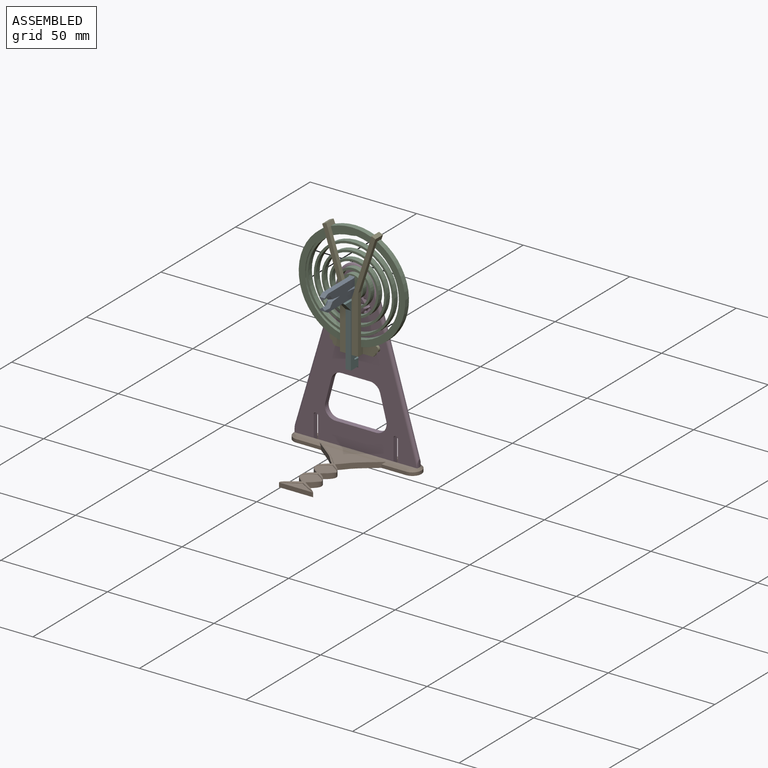
[diagram: assembled view]
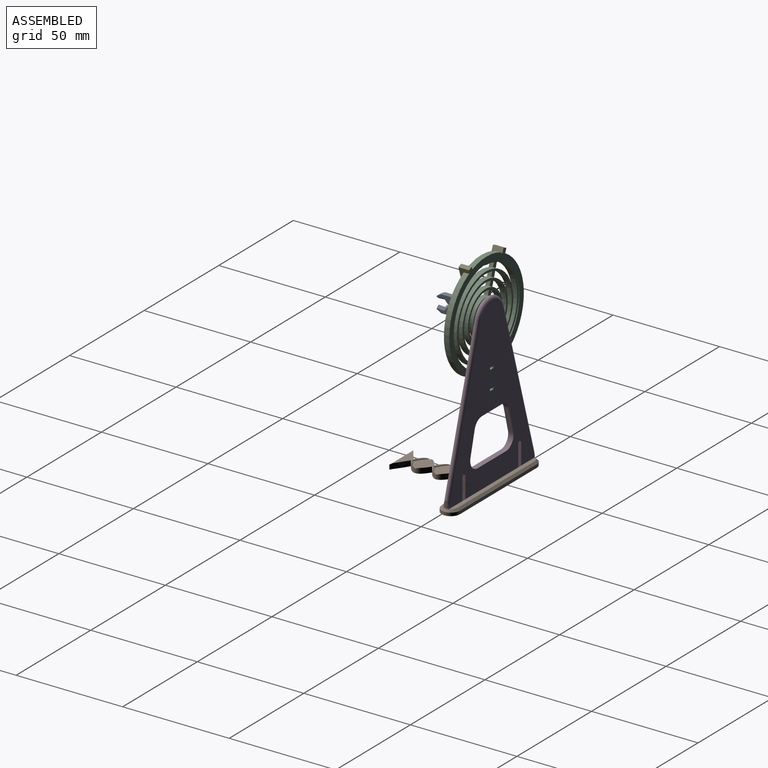
[diagram: assembled view, second angle]
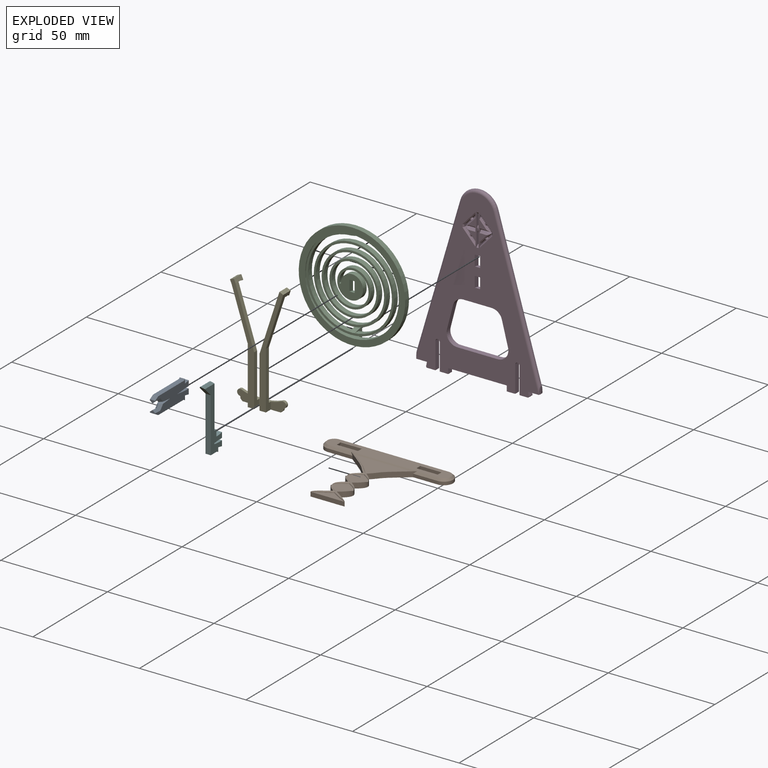
[diagram: exploded view]
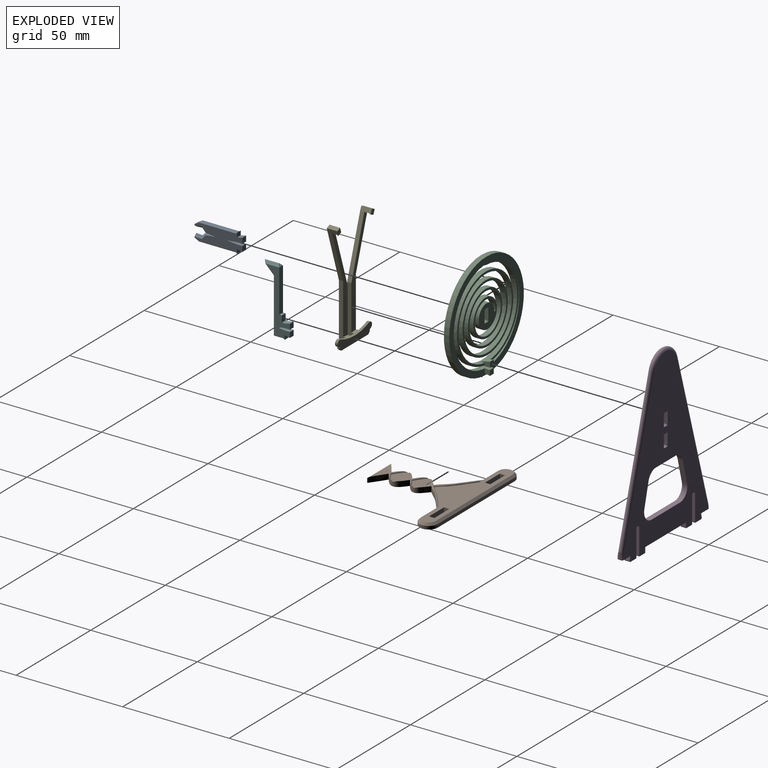
[diagram: exploded view, second angle]
ASSEMBLY  parts=6 mates=5
PART A: 34 faces, bbox 22.5x9x2.5 mm
  f0: plane 22.5x9mm, normal (0,0,1), area 141.1mm2, adj f2,f4,f5,f7,f8,f9,f10,f11
  f1: plane 1.11x0.96mm, normal (-0.75,-0.66,0), area 0.1mm2, adj f2,f3,f26,f28
  f2: plane 2.33x2.16mm, normal (-0.58,-0.5,0.64), area 3.4mm2, adj f0,f1,f25,f26,f28,f32
  f3: plane 2.31x2.16mm, normal (-0.58,-0.5,-0.64), area 3.4mm2, adj f1,f17,f26,f28,f32
  f4: plane 2.5x2.5mm, normal (0,-1,0), area 6.3mm2, adj f0,f14,f17,f30
  f5: plane 2.5x0.5mm, normal (-0.71,0.71,0), area 1.8mm2, adj f0,f16,f17,f24
  f6: plane 1.11x0.96mm, normal (-0.75,0.66,0), area 0.1mm2, adj f19,f20,f21,f29
  f7: plane 2.5x1.44mm, normal (-1,0,0), area 2.3mm2, adj f0,f17,f18,f20,f22
  f8: plane 17.39x2.5mm, normal (0,-1,0), area 43.5mm2, adj f0,f9,f17,f22
  f9: plane 2.5x0.5mm, normal (-0.71,-0.71,0), area 1.8mm2, adj f0,f8,f10,f17
  f10: plane 2.5x2mm, normal (1,0,0), area 5mm2, adj f0,f9,f11,f17
  f11: plane 2.5x2.5mm, normal (-0.2,-0.98,0), area 6.4mm2, adj f0,f10,f12,f17
  f12: plane 2.5x2.5mm, normal (1,0,0), area 6.2mm2, adj f0,f11,f13,f17
  f13: plane 2.5x2.5mm, normal (0,1,0), area 6.3mm2, adj f0,f12,f17,f31
  f14: plane 2.5x2.5mm, normal (1,0,0), area 6.2mm2, adj f0,f4,f15,f17
  f15: plane 2.5x2.5mm, normal (-0.2,0.98,0), area 6.4mm2, adj f0,f14,f16,f17
  f16: plane 2.5x2mm, normal (1,0,0), area 5mm2, adj f0,f5,f15,f17
  f17: plane 22.5x9mm, normal (0,0,-1), area 141.1mm2, adj f3,f4,f5,f7,f8,f9,f10,f11
  f18: plane 3.43x1.25mm, normal (0.05,0.77,0.64), area 5.2mm2, adj f0,f7,f19,f20
  f19: plane 2.33x2.16mm, normal (-0.58,0.5,0.64), area 3.4mm2, adj f0,f6,f18,f20,f29,f33
  f20: plane 3.43x1.3mm, normal (0.05,0.77,-0.64), area 5.2mm2, adj f6,f7,f17,f18,f19,f21
  f21: plane 2.31x2.16mm, normal (-0.58,0.5,-0.64), area 3.4mm2, adj f6,f17,f20,f29,f33
  f22: plane 2.5x2.11mm, normal (-0.49,-0.87,0), area 6mm2, adj f0,f7,f8,f17
  f23: plane 2.5x1.44mm, normal (-1,0,0), area 2.3mm2, adj f0,f17,f25,f26,f27
  f24: plane 17.39x2.5mm, normal (0,1,0), area 43.5mm2, adj f0,f5,f17,f27
  f25: plane 3.43x1.25mm, normal (0.05,-0.77,0.64), area 5.2mm2, adj f0,f2,f23,f26
  f26: plane 3.43x1.3mm, normal (0.05,-0.77,-0.64), area 5.2mm2, adj f1,f2,f3,f17,f23,f25
  f27: plane 2.5x2.11mm, normal (-0.49,0.87,0), area 6mm2, adj f0,f17,f23,f24
  f28: plane 1.99x1.04mm, normal (0,-1,0), area 1.1mm2, adj f1,f2,f3,f32
  f29: plane 1.99x1.04mm, normal (0,1,0), area 1.1mm2, adj f6,f19,f21,f33
  f30: plane 5x2.5mm, normal (0.1,-1,0), area 12.6mm2, adj f0,f4,f17,f31
  f31: plane 5x2.5mm, normal (0.1,1,0), area 12.6mm2, adj f0,f13,f17,f30
  f32: plane 5x2.5mm, normal (-0.1,-1,0), area 12.5mm2, adj f0,f2,f3,f17,f28,f33
  f33: plane 5x2.5mm, normal (-0.1,1,0), area 12.5mm2, adj f0,f17,f19,f21,f29,f32
PART B: 60 faces, bbox 60.1x2.6x46 mm
  f0: cylinder r=2.3mm len=2.5mm, axis (0,0,1), area 0.8mm2, adj f5,f11,f12,f59
  f1: cylinder r=2.3mm len=2.5mm, axis (0,0,-1), area 0.8mm2, adj f5,f13,f15,f58
  f2: plane 4.9x3.78mm, normal (0,-1,0), area 1.9mm2, adj f30,f31,f46,f47
  f3: plane 5.73x5.66mm, normal (0,-1,0), area 2.8mm2, adj f8,f33,f42,f43
  f4: plane 16x2mm, normal (0,0,-1), area 32mm2, adj f9,f25,f33,f39
  f5: plane 58x21.89mm, normal (0,-1,0), area 335mm2, adj f0,f1,f10,f11,f12,f13,f14,f15
  f6: plane 5.68x5.66mm, normal (0,-1,0), area 2.8mm2, adj f16,f25,f40,f41
  f7: plane 4.9x3.78mm, normal (0,-1,0), area 1.9mm2, adj f18,f19,f44,f45
  f8: extruded ~4.99x4.17mm, area 16.3mm2, adj f3,f9,f32,f33,f36,f42
  f9: plane 60x45.53mm, normal (0,1,0), area 797.5mm2, adj f4,f8,f10,f11,f12,f13,f14,f15
  f10: plane 2.5x2.5mm, normal (-1,0,0), area 6.3mm2, adj f5,f9,f11,f12
  f11: plane 10.45x2.5mm, normal (0,0,-1), area 25.5mm2, adj f0,f5,f9,f10,f59
  f12: plane 10.45x2.5mm, normal (0,0,1), area 25.5mm2, adj f0,f5,f9,f10,f59
  f13: plane 10.45x2.5mm, normal (0,0,-1), area 25.5mm2, adj f1,f5,f9,f14,f58
  f14: plane 2.5x2.5mm, normal (1,0,0), area 6.3mm2, adj f5,f9,f13,f15
  f15: plane 10.45x2.5mm, normal (0,0,1), area 25.5mm2, adj f1,f5,f9,f14,f58
  f16: extruded ~4.99x4.17mm, area 16.3mm2, adj f6,f9,f17,f25,f36,f40
  f17: extruded ~2x0.19mm, area 0.4mm2, adj f9,f16,f18,f36
  f18: extruded ~4.78x4.2mm, area 15.7mm2, adj f7,f9,f17,f19,f45
  f19: extruded ~4.93x4.21mm, area 16.2mm2, adj f7,f9,f18,f20,f44
  f20: extruded ~2x0.1mm, area 0.2mm2, adj f9,f19,f21,f38
  f21: extruded ~4.99x4.24mm, area 16mm2, adj f5,f9,f20,f22,f51
  f22: extruded ~14.71x12.98mm, area 46mm2, adj f5,f9,f21,f23,f56
  f23: plane 11.5x1.5mm, normal (0,0,-1), area 17.2mm2, adj f9,f22,f24,f56
  f24: cylinder r=4.28mm len=8.56mm, axis (0,-1,0), area 20.2mm2, adj f9,f23,f35,f55
  f25: extruded ~7.17x5.01mm, area 21.2mm2, adj f4,f6,f9,f16,f41
  f26: plane 11.5x1.5mm, normal (0,0,-1), area 17.2mm2, adj f9,f27,f34,f52
  f27: extruded ~14.71x12.98mm, area 46mm2, adj f5,f9,f26,f28,f52
  f28: extruded ~4.99x4.24mm, area 16mm2, adj f5,f9,f27,f29,f50
  f29: extruded ~2x0.1mm, area 0.2mm2, adj f9,f28,f30,f38
  f30: extruded ~4.93x4.21mm, area 16.2mm2, adj f2,f9,f29,f31,f46
  f31: extruded ~4.78x4.2mm, area 15.7mm2, adj f2,f9,f30,f32,f47
  f32: extruded ~2x0.19mm, area 0.4mm2, adj f8,f9,f31,f36
  f33: extruded ~7.17x5.01mm, area 21.2mm2, adj f3,f4,f8,f9,f43
  f34: cylinder r=4.28mm len=8.56mm, axis (0,-1,0), area 20.2mm2, adj f9,f26,f35,f53
  f35: plane 51.44x1.5mm, normal (0,0,1), area 77.2mm2, adj f9,f24,f34,f54
  f36: plane 10.49x9.18mm, normal (0,-1,0), area 55mm2, adj f8,f16,f17,f32,f40,f42,f45,f47
  f37: plane 27.99x12mm, normal (0,-1,0), area 151.8mm2, adj f48,f49,f57
  f38: plane 10.56x9.43mm, normal (0,-1,0), area 54mm2, adj f20,f29,f44,f46,f50,f51
  f39: plane 16.05x4.53mm, normal (0,-1,0), area 33.4mm2, adj f4,f41,f43
  f40: bspline ~6.35x5.63mm, area 4.6mm2, adj f6,f16,f36,f41,f42
  f41: bspline ~9.87x5.8mm, area 6.5mm2, adj f6,f25,f39,f40,f43
  f42: bspline ~6.35x5.63mm, area 4.6mm2, adj f3,f8,f36,f40,f43
  f43: bspline ~9.87x5.8mm, area 6.5mm2, adj f3,f33,f39,f41,f42
  f44: bspline ~6.6x5.76mm, area 4.7mm2, adj f7,f19,f38,f45,f46
  f45: bspline ~7.04x6.09mm, area 4.6mm2, adj f7,f18,f36,f44,f47
  f46: bspline ~6.35x5.57mm, area 4.7mm2, adj f2,f30,f38,f44,f47
  f47: bspline ~7.04x6.09mm, area 4.6mm2, adj f2,f31,f36,f45,f46
  f48: bspline ~16.84x14.25mm, area 15.1mm2, adj f5,f37,f49,f50,f57
  f49: bspline ~16.84x14.25mm, area 15.1mm2, adj f5,f37,f48,f51,f57
  f50: bspline ~6.37x5.71mm, area 4.5mm2, adj f5,f28,f38,f48,f51
  f51: bspline ~6.37x5.71mm, area 4.5mm2, adj f5,f21,f38,f49,f50
  f52: plane 11.5x1mm, normal (0,-0.71,-0.71), area 15.4mm2, adj f5,f26,f27,f53
  f53: cone r=3.28mm half-angle=45deg, axis (0,1,0), area 16.8mm2, adj f5,f34,f52,f54
  f54: plane 51.44x1mm, normal (0,-0.71,0.71), area 72.7mm2, adj f5,f35,f53,f55
  f55: cone r=3.28mm half-angle=45deg, axis (0,1,0), area 16.8mm2, adj f5,f24,f54,f56
  f56: plane 11.5x1mm, normal (0,-0.71,-0.71), area 15.4mm2, adj f5,f22,f23,f55
  f57: plane 30.82x0.5mm, normal (0,-0.71,-0.71), area 20.4mm2, adj f5,f37,f48,f49
  f58: plane 2.5x2.16mm, normal (-0.98,0.21,0), area 5.5mm2, adj f1,f9,f13,f15
  f59: plane 2.5x2.16mm, normal (0.98,0.21,0), area 5.5mm2, adj f0,f9,f11,f12
PART C: 28 faces, bbox 5.6x50.6x50.6 mm
  f0: plane 50x50mm, normal (-1,0,0), area 904.6mm2, adj f1,f3,f10,f11,f12,f18,f19,f20
  f1: extruded ~40.36x37.52mm, area 975.3mm2, adj f0,f2,f9,f11,f16,f17,f25,f26
  f2: plane 39.44x37.69mm, normal (1,0,0), area 395.9mm2, adj f1,f3,f16,f19,f20,f21,f22,f23
  f3: extruded ~40.68x38.21mm, area 911mm2, adj f0,f2,f9,f12,f16,f17,f24,f27
  f4: plane 2.5x2.5mm, normal (1,0,0), area 6.2mm2, adj f5,f6,f7,f8
  f5: plane 2.5x2.5mm, normal (0,0,1), area 5.6mm2, adj f4,f7,f8,f9
  f6: plane 2.5x2.5mm, normal (0,0,-1), area 5.6mm2, adj f4,f7,f8,f9
  f7: plane 2.5x2.5mm, normal (-0.2,0.98,0), area 6.4mm2, adj f4,f5,f6,f9
  f8: plane 2.5x2.5mm, normal (0,-1,0), area 6.3mm2, adj f4,f5,f6,f9
  f9: plane 50x50mm, normal (1,0,0), area 498.8mm2, adj f1,f3,f5,f6,f7,f8,f10,f11
  f10: cylinder r=25mm len=50mm, axis (1,0,0), area 392.7mm2, adj f0,f9
  f11: cylinder r=22mm len=44mm, axis (-1,0,0), area 293.3mm2, adj f0,f1,f9,f18
  f12: plane 2.5x0.01mm, normal (0,-0.03,-1), area 0mm2, adj f0,f3,f9,f18
  f13: plane 2.5x2.5mm, normal (1,0,0), area 6.2mm2, adj f14,f15,f16,f17
  f14: plane 3.56x2.81mm, normal (0,1,0), area 7.8mm2, adj f13,f16,f17,f25
  f15: plane 3.83x3.08mm, normal (-0.2,-0.98,0), area 7.2mm2, adj f13,f16,f17,f24
  f16: plane 4.5x2.5mm, normal (0,0,-1), area 6.8mm2, adj f1,f2,f3,f13,f14,f15,f24,f25
  f17: plane 4.5x2.5mm, normal (0,0,1), area 6.8mm2, adj f1,f3,f9,f13,f14,f15,f24,f25
  f18: plane 2.5x2.02mm, normal (0,0.98,-0.19), area 5.2mm2, adj f0,f9,f11,f12
  f19: plane 6x2.5mm, normal (0,0,-1), area 13.7mm2, adj f0,f2,f22,f23
  f20: cylinder r=5.15mm len=10.31mm, axis (-1,0,0), area 41.1mm2, adj f0,f2,f26,f27
  f21: plane 6x2.5mm, normal (0,0,1), area 13.7mm2, adj f0,f2,f22,f23
  f22: plane 2.5x2.5mm, normal (0.2,0.98,0), area 6.4mm2, adj f0,f2,f19,f21
  f23: plane 2.5x2.5mm, normal (0.2,-0.98,0), area 6.4mm2, adj f0,f2,f19,f21
  f24: bspline ~2.85x2mm, area 4mm2, adj f3,f15,f16,f17
  f25: bspline ~2.55x1.62mm, area 3.8mm2, adj f1,f14,f16,f17
  f26: cylinder r=100mm len=2.5mm, axis (1,0,0), area 1.4mm2, adj f0,f1,f2,f20
  f27: cylinder r=0.38mm len=2.5mm, axis (1,0,0), area 2.9mm2, adj f0,f2,f3,f20
PART D: 99 faces, bbox 59.9x2.6x82.3 mm
  f0: plane 15x2.4mm, normal (1,0,0), area 28.5mm2, adj f1,f3,f28,f30,f75,f94,f95,f98
  f1: plane 1.4x1mm, normal (0,0,1), area 1.4mm2, adj f0,f2,f94,f98
  f2: plane 15x2.4mm, normal (-1,0,0), area 28.5mm2, adj f1,f3,f29,f30,f74,f94,f95,f98
  f3: plane 1.4x1mm, normal (0,0,-1), area 1.4mm2, adj f0,f2,f95,f98
  f4: plane 6x5.5mm, normal (0.74,0,0.68), area 13.7mm2, adj f5,f13,f79,f93,f97
  f5: plane 2.48x2.4mm, normal (-1,0,0), area 2.8mm2, adj f4,f6,f30,f83,f93,f97
  f6: plane 5x4.58mm, normal (-0.74,0,-0.68), area 11.1mm2, adj f5,f7,f79,f83,f97
  f7: plane 4.58x1.9mm, normal (0,0,1), area 8mm2, adj f6,f8,f24,f76,f82,f97
  f8: plane 1.07x0.89mm, normal (-1,0,0), area 0.6mm2, adj f7,f9,f27,f76,f97
  f9: plane 4.58x1.9mm, normal (0,0,-1), area 8.2mm2, adj f8,f10,f24,f27,f80,f97
  f10: plane 5x4.58mm, normal (-0.74,0,0.68), area 11.1mm2, adj f9,f11,f73,f81,f97
  f11: plane 2.48x2.4mm, normal (-1,0,0), area 2.8mm2, adj f10,f12,f30,f81,f91,f97
  f12: plane 6x5.5mm, normal (0.74,0,-0.68), area 13.7mm2, adj f11,f13,f73,f91,f97
  f13: plane 1.9x1mm, normal (1,0,0), area 1.9mm2, adj f4,f12,f92,f97
  f14: plane 1.9x1mm, normal (-1,0,0), area 1.9mm2, adj f15,f23,f89,f96
  f15: plane 6x5.5mm, normal (-0.74,0,-0.68), area 13.7mm2, adj f14,f16,f78,f90,f96
  f16: plane 2.48x2.4mm, normal (1,0,0), area 2.8mm2, adj f15,f17,f30,f87,f90,f96
  f17: plane 5x4.58mm, normal (0.74,0,0.68), area 11.1mm2, adj f16,f18,f78,f87,f96
  f18: plane 4.58x1.9mm, normal (0,0,-1), area 8.2mm2, adj f17,f19,f25,f77,f86,f96
  f19: plane 1.07x0.89mm, normal (1,0,0), area 0.6mm2, adj f18,f20,f26,f77,f96
  f20: plane 4.58x1.9mm, normal (0,0,1), area 8mm2, adj f19,f21,f25,f26,f84,f96
  f21: plane 5x4.58mm, normal (0.74,0,-0.68), area 11.1mm2, adj f20,f22,f72,f85,f96
  f22: plane 2.48x2.4mm, normal (1,0,0), area 2.8mm2, adj f21,f23,f30,f85,f88,f96
  f23: plane 6x5.5mm, normal (-0.74,0,0.68), area 13.7mm2, adj f14,f22,f72,f88,f96
  f24: plane 2.07x0.99mm, normal (-1,0,0), area 1mm2, adj f7,f9,f27,f30,f76,f80,f82
  f25: plane 2.07x0.99mm, normal (1,0,0), area 1mm2, adj f18,f20,f26,f30,f77,f84,f86
  f26: cylinder r=0.75mm len=1.41mm, axis (-0.74,0,0.68), area 1.1mm2, adj f19,f20,f25,f77
  f27: cylinder r=0.75mm len=1.32mm, axis (-0.74,0,0.68), area 0.8mm2, adj f8,f9,f24,f76
  f28: cylinder r=0.75mm len=1.74mm, axis (-0.74,0,0.68), area 1.8mm2, adj f0,f74,f75
  f29: cylinder r=0.75mm len=1.74mm, axis (-0.74,0,0.68), area 1.8mm2, adj f2,f74,f75
  f30: plane 80.25x57.39mm, normal (0,-1,0), area 2026.9mm2, adj f0,f2,f5,f11,f16,f22,f24,f25
  f31: plane 80.25x57.39mm, normal (0,1,0), area 2106.2mm2, adj f32,f33,f34,f35,f36,f37,f38,f39
  f32: plane 5.28x2.5mm, normal (0,0,-1), area 13mm2, adj f30,f31,f34,f61,f66
  f33: plane 5.28x2.5mm, normal (0,0,-1), area 13mm2, adj f30,f31,f60,f64,f67
  f34: cylinder r=1.25mm len=72.56mm, axis (0.28,0,-0.96), area 287.4mm2, adj f30,f31,f32,f65,f66
  f35: plane 27.44x2.5mm, normal (0,0,-1), area 68.6mm2, adj f30,f31,f54,f57
  f36: plane 11.02x2.85mm, normal (0.97,0,-0.25), area 28.5mm2, adj f30,f31,f42,f43
  f37: plane 13.29x2.5mm, normal (0,0,-1), area 33.2mm2, adj f30,f31,f40,f43
  f38: plane 11.02x2.85mm, normal (-0.97,0,-0.25), area 28.5mm2, adj f30,f31,f40,f41
  f39: plane 19x2.5mm, normal (0,0,1), area 47.5mm2, adj f30,f31,f41,f42
  f40: cylinder r=4.99mm len=4.83mm, axis (0,-1,0), area 16.4mm2, adj f30,f31,f37,f38
  f41: cylinder r=4.99mm len=6.24mm, axis (0,-1,0), area 22.8mm2, adj f30,f31,f38,f39
  f42: cylinder r=4.99mm len=6.24mm, axis (0,1,0), area 22.8mm2, adj f30,f31,f36,f39
  f43: cylinder r=4.99mm len=4.83mm, axis (0,1,0), area 16.4mm2, adj f30,f31,f36,f37
  f44: plane 6x2.5mm, normal (1,0,0), area 13.7mm2, adj f30,f31,f46,f47
  f45: plane 6x2.5mm, normal (-1,0,0), area 13.8mm2, adj f30,f31,f46,f47
  f46: plane 2.5x2.5mm, normal (0,0.2,0.98), area 6.4mm2, adj f30,f31,f44,f45
  f47: plane 2.5x2.5mm, normal (0,0.2,-0.98), area 6.4mm2, adj f30,f31,f44,f45
  f48: plane 12.5x2.5mm, normal (1,0,0), area 31.2mm2, adj f30,f31,f49,f55
  f49: cylinder r=1mm len=2.5mm, axis (0,1,0), area 7.9mm2, adj f30,f31,f48,f50
  f50: plane 12.5x2.5mm, normal (-1,0,0), area 31.2mm2, adj f30,f31,f49,f56
  f51: plane 12.5x2.5mm, normal (1,0,0), area 31.3mm2, adj f30,f31,f52,f59
  f52: cylinder r=1mm len=2.5mm, axis (0,1,0), area 7.9mm2, adj f30,f31,f51,f53
  f53: plane 12.5x2.5mm, normal (-1,0,0), area 31.2mm2, adj f30,f31,f52,f58
  f54: plane 2.5x2.5mm, normal (-1,0,0), area 6.3mm2, adj f30,f31,f35,f55
  f55: plane 4x2.5mm, normal (0,0,-1), area 10mm2, adj f30,f31,f48,f54
  f56: plane 3.89x2.5mm, normal (0,0,-1), area 9.7mm2, adj f30,f31,f50,f62
  f57: plane 2.5x2.5mm, normal (1,0,0), area 6.2mm2, adj f30,f31,f35,f58
  f58: plane 4x2.5mm, normal (0,0,-1), area 10mm2, adj f30,f31,f53,f57
  f59: plane 3.89x2.5mm, normal (0,0,-1), area 9.7mm2, adj f30,f31,f51,f63
  f60: plane 2.5x1.9mm, normal (-0.98,0,0.2), area 4.8mm2, adj f30,f31,f33,f63
  f61: plane 2.5x1.9mm, normal (0.98,0,0.2), area 4.8mm2, adj f30,f31,f32,f62
  f62: cylinder r=0.5mm len=2.5mm, axis (0,-1,0), area 2.2mm2, adj f30,f31,f56,f61
  f63: cylinder r=0.5mm len=2.5mm, axis (0,1,0), area 2.2mm2, adj f30,f31,f59,f60
  f64: cylinder r=1.25mm len=72.56mm, axis (0.28,0,0.96), area 287.4mm2, adj f30,f31,f33,f65,f67
  f65: torus R=7.75mm, axis (0,-1,0), area 86.2mm2, adj f30,f31,f34,f64
  f66: cylinder r=3.28mm len=3.4mm, axis (0,0,-1), area 6.9mm2, adj f32,f34
  f67: cylinder r=3.28mm len=3.4mm, axis (0,0,-1), area 6.9mm2, adj f33,f64
  f68: plane 6x2.5mm, normal (-1,0,0), area 13.8mm2, adj f30,f31,f70,f71
  f69: plane 6x2.5mm, normal (1,0,0), area 13.8mm2, adj f30,f31,f70,f71
  f70: plane 2.5x2.5mm, normal (0,0.2,0.98), area 6.4mm2, adj f30,f31,f68,f69
  f71: plane 2.5x2.5mm, normal (0,0.2,-0.98), area 6.4mm2, adj f30,f31,f68,f69
  f72: cylinder r=0.75mm len=1.56mm, axis (-0.74,0,0.68), area 3.2mm2, adj f21,f23
  f73: cylinder r=0.75mm len=1.56mm, axis (-0.74,0,0.68), area 3.2mm2, adj f10,f12
  f74: cylinder r=0.75mm len=1.74mm, axis (0.74,0,0.68), area 1.8mm2, adj f2,f28,f29
  f75: cylinder r=0.75mm len=1.74mm, axis (0.74,0,0.68), area 1.8mm2, adj f0,f28,f29
  f76: cylinder r=0.75mm len=1.41mm, axis (0.74,0,0.68), area 1.1mm2, adj f7,f8,f24,f27
  f77: cylinder r=0.75mm len=1.32mm, axis (0.74,0,0.68), area 0.8mm2, adj f18,f19,f25,f26
  f78: cylinder r=0.75mm len=1.56mm, axis (0.74,0,0.68), area 3.2mm2, adj f15,f17
  f79: cylinder r=0.75mm len=1.56mm, axis (0.74,0,0.68), area 3.2mm2, adj f4,f6
  f80: plane 4.58x0.5mm, normal (0,-0.71,-0.71), area 2.8mm2, adj f9,f24,f30,f81
  f81: plane 5x4.58mm, normal (-0.52,-0.71,0.48), area 4.2mm2, adj f10,f11,f30,f80
  f82: plane 4.58x0.5mm, normal (0,-0.71,0.71), area 2.8mm2, adj f7,f24,f30,f83
  f83: plane 5x4.58mm, normal (-0.52,-0.71,-0.48), area 4.2mm2, adj f5,f6,f30,f82
  f84: plane 4.58x0.5mm, normal (0,-0.71,0.71), area 2.8mm2, adj f20,f25,f30,f85
  f85: plane 5x4.58mm, normal (0.52,-0.71,-0.48), area 4.2mm2, adj f21,f22,f30,f84
  f86: plane 4.58x0.5mm, normal (0,-0.71,-0.71), area 2.8mm2, adj f18,f25,f30,f87
  f87: plane 5x4.58mm, normal (0.52,-0.71,0.48), area 4.2mm2, adj f16,f17,f30,f86
  f88: plane 6.74x6mm, normal (-0.52,-0.71,0.48), area 6mm2, adj f22,f23,f30,f89
  f89: plane 1.39x0.5mm, normal (-0.71,-0.71,0), area 0.8mm2, adj f14,f30,f88,f90
  f90: plane 6.74x6mm, normal (-0.52,-0.71,-0.48), area 6mm2, adj f15,f16,f30,f89
  f91: plane 6.74x6mm, normal (0.52,-0.71,-0.48), area 6mm2, adj f11,f12,f30,f92
  f92: plane 1.39x0.5mm, normal (0.71,-0.71,0), area 0.8mm2, adj f13,f30,f91,f93
  f93: plane 6.74x6mm, normal (0.52,-0.71,0.48), area 6mm2, adj f4,f5,f30,f92
  f94: plane 1x1mm, normal (0,-0.71,0.71), area 1.4mm2, adj f0,f1,f2,f30
  f95: plane 1x1mm, normal (0,-0.71,-0.71), area 1.4mm2, adj f0,f2,f3,f30
  f96: plane 13x5.5mm, normal (0,-1,0), area 15.6mm2, adj f14,f15,f16,f17,f18,f19,f20,f21
  f97: plane 13x5.5mm, normal (0,-1,0), area 15.6mm2, adj f4,f5,f6,f7,f8,f9,f10,f11
  f98: plane 13x1mm, normal (0,-1,0), area 13mm2, adj f0,f1,f2,f3
PART E: 42 faces, bbox 25x5x52.8 mm
  f0: plane 2.5x1.83mm, normal (0.4,0,-0.92), area 5mm2, adj f22,f29,f30,f38
  f1: plane 7.26x4.97mm, normal (0,-1,0), area 26.6mm2, adj f7,f8,f9,f10,f11,f13,f15
  f2: plane 7.26x4.97mm, normal (0,-1,0), area 26.6mm2, adj f4,f5,f6,f7,f11,f14,f18
  f3: plane 3.03x2.5mm, normal (0,-1,0), area 7.5mm2, adj f7,f11,f16,f19
  f4: cylinder r=1.51mm len=2.9mm, axis (0,1,0), area 6.2mm2, adj f2,f5,f11,f12
  f5: cylinder r=28mm len=1.25mm, axis (0,1,0), area 0.8mm2, adj f2,f4,f6,f12
  f6: plane 1.25x0.85mm, normal (-1,0,0), area 1.1mm2, adj f2,f5,f12,f14
  f7: plane 18x4.5mm, normal (0,0,-1), area 42mm2, adj f1,f2,f3,f12,f13,f14,f15,f16
  f8: plane 1.25x0.85mm, normal (1,0,0), area 1.1mm2, adj f1,f9,f12,f13
  f9: cylinder r=28mm len=1.25mm, axis (0,1,0), area 0.8mm2, adj f1,f8,f10,f12
  f10: cylinder r=1.51mm len=2.9mm, axis (0,1,0), area 6.2mm2, adj f1,f9,f11,f12
  f11: cylinder r=25mm len=18.5mm, axis (0,1,0), area 31.2mm2, adj f1,f2,f3,f4,f10,f12,f15,f16
  f12: plane 23.01x4.97mm, normal (0,1,0), area 79.8mm2, adj f4,f5,f6,f7,f8,f9,f10,f11
  f13: plane 1.25x1mm, normal (0.71,0,-0.71), area 1.8mm2, adj f1,f7,f8,f12
  f14: plane 1.25x1mm, normal (-0.71,0,-0.71), area 1.8mm2, adj f2,f6,f7,f12
  f15: plane 27.03x3.25mm, normal (1,0,0), area 58.3mm2, adj f1,f7,f11,f17,f21,f23
  f16: plane 24.03x3.25mm, normal (-1,0,0), area 51.9mm2, adj f3,f7,f11,f17,f21,f24
  f17: plane 52.83x11.17mm, normal (0,-1,0), area 132.8mm2, adj f7,f15,f16,f23,f24,f25,f34,f35
  f18: plane 27.03x3.25mm, normal (-1,0,0), area 58.3mm2, adj f2,f7,f11,f20,f22,f26
  f19: plane 24.03x3.25mm, normal (1,0,0), area 51.9mm2, adj f3,f7,f11,f20,f22,f28
  f20: plane 52.76x11.35mm, normal (0,-1,0), area 132.8mm2, adj f7,f18,f19,f26,f27,f28,f29,f30
  f21: plane 47.9x10.55mm, normal (0,1,0), area 119.3mm2, adj f11,f15,f16,f23,f24,f25,f33
  f22: plane 47.9x10.55mm, normal (0,1,0), area 119.3mm2, adj f0,f11,f18,f19,f26,f27,f28
  f23: plane 2x0.1mm, normal (0.71,0,-0.71), area 0.3mm2, adj f15,f17,f21,f25
  f24: plane 26.9x8.72mm, normal (-0.95,0,0.31), area 56.5mm2, adj f16,f17,f21,f36
  f25: plane 23x7.46mm, normal (0.95,0,-0.31), area 48.4mm2, adj f17,f21,f23,f34
  f26: plane 2x0.1mm, normal (-0.71,0,-0.71), area 0.3mm2, adj f18,f20,f22,f27
  f27: plane 23x7.46mm, normal (-0.95,0,-0.31), area 48.4mm2, adj f20,f22,f26,f29
  f28: plane 26.9x8.72mm, normal (0.95,0,0.31), area 56.5mm2, adj f19,f20,f22,f30
  f29: plane 5x2.11mm, normal (-0.92,0,-0.4), area 10.1mm2, adj f0,f20,f27,f31,f32,f38,f39
  f30: plane 5x2.11mm, normal (0.92,0,0.4), area 10.1mm2, adj f0,f20,f28,f31,f32,f38,f39
  f31: plane 5x1.83mm, normal (-0.4,0,0.92), area 10mm2, adj f20,f29,f30,f32
  f32: plane 2.91x2.75mm, normal (0,1,0), area 4.6mm2, adj f29,f30,f31,f39
  f33: plane 2.5x1.83mm, normal (-0.4,0,-0.92), area 5mm2, adj f21,f34,f36,f40
  f34: plane 5x2.19mm, normal (0.95,0,-0.31), area 10.2mm2, adj f17,f25,f33,f35,f37,f40,f41
  f35: plane 5x1.83mm, normal (0.4,0,0.92), area 10mm2, adj f17,f34,f36,f37
  f36: plane 5x2.19mm, normal (-0.95,0,0.31), area 10.2mm2, adj f17,f24,f33,f35,f37,f40,f41
  f37: plane 2.99x2.55mm, normal (0,1,0), area 4.6mm2, adj f34,f35,f36,f41
  f38: plane 1.95x1.07mm, normal (0,-1,0), area 0.6mm2, adj f0,f29,f30,f39
  f39: plane 1.83x0.8mm, normal (0.4,0,-0.92), area 1mm2, adj f29,f30,f32,f38
  f40: plane 1.93x1.08mm, normal (0,-1,0), area 0.6mm2, adj f33,f34,f36,f41
  f41: plane 1.83x0.8mm, normal (-0.4,0,-0.92), area 1mm2, adj f34,f36,f37,f40
PART F: 24 faces, bbox 12.5x31x2.5 mm
  f0: plane 30x11.5mm, normal (0,0,1), area 111.2mm2, adj f2,f3,f4,f5,f6,f7,f8,f9
  f1: plane 30x11.5mm, normal (0,0,-1), area 111.2mm2, adj f2,f3,f4,f5,f6,f7,f8,f9
  f2: plane 2.5x2.5mm, normal (0,-1,0), area 6.3mm2, adj f0,f1,f9,f11
  f3: plane 4.5x2.5mm, normal (0,-1,0), area 11.2mm2, adj f0,f1,f4,f15
  f4: plane 2.5x0.5mm, normal (-0.71,-0.71,0), area 1.8mm2, adj f0,f1,f3,f5
  f5: plane 2.5x2mm, normal (1,0,0), area 5mm2, adj f0,f1,f4,f6
  f6: plane 2.5x2.5mm, normal (-0.2,-0.98,0), area 6.4mm2, adj f0,f1,f5,f7
  f7: plane 2.5x2.5mm, normal (1,0,0), area 6.2mm2, adj f0,f1,f6,f8
  f8: plane 2.5x2.5mm, normal (0,1,0), area 6.3mm2, adj f0,f1,f7,f12
  f9: plane 2.5x2.5mm, normal (1,0,0), area 6.2mm2, adj f0,f1,f2,f10
  f10: plane 2.5x2.5mm, normal (-0.2,0.98,0), area 6.4mm2, adj f0,f1,f9,f18
  f11: plane 2.5x2.41mm, normal (0.1,-1,0), area 6mm2, adj f0,f1,f2,f13
  f12: plane 2.5x2.41mm, normal (0.1,1,0), area 6mm2, adj f0,f1,f8,f13
  f13: cylinder r=0.26mm len=2.5mm, axis (0,0,-1), area 1.9mm2, adj f0,f1,f11,f12
  f14: plane 5x5mm, normal (-0.71,-0.71,0), area 16.3mm2, adj f0,f1,f15,f16,f21,f22
  f15: plane 25.5x2.5mm, normal (-1,0,0), area 63.8mm2, adj f0,f1,f3,f14
  f16: plane 6.5x0.5mm, normal (0,1,0), area 3.2mm2, adj f14,f21,f22,f23
  f17: plane 3x2.5mm, normal (1,0,0), area 7.5mm2, adj f0,f1,f18,f19
  f18: plane 2.5x1.25mm, normal (0,1,0), area 3.1mm2, adj f0,f1,f10,f17
  f19: plane 2.5x1.25mm, normal (0,1,0), area 3.1mm2, adj f0,f1,f17,f20
  f20: plane 20x2.5mm, normal (1,0,0), area 50mm2, adj f0,f1,f19,f23
  f21: plane 7.5x1mm, normal (0,0.71,-0.71), area 9.2mm2, adj f1,f14,f16,f23
  f22: plane 7.5x1mm, normal (0,0.71,0.71), area 9.2mm2, adj f0,f14,f16,f23
  f23: plane 2.5x1mm, normal (0.71,0.71,0), area 2.1mm2, adj f16,f20,f21,f22
PLACE A rot(axis=(0.58,0.58,0.58),120deg) t=(-41.54,1.27,59.05)mm
PLACE B rot(axis=(-1,0,0),90deg) t=(-120.29,-37.48,-13.95)mm
PLACE C rot(axis=(-0.58,-0.58,0.58),120deg) t=(-39.04,3.77,37.55)mm
PLACE D t=(-40.29,5.02,-11.45)mm
PLACE E t=(-40.29,2.52,59.05)mm
PLACE F rot(axis=(0.58,0.58,0.58),120deg) t=(-41.54,3.77,28.55)mm
MATE fastened B.f10 <-> D.f57  axis (-1,0,0) through (-54.01,3.77,-12.7)mm
MATE fastened A.f16 <-> C.f0  axis (0,1,0) through (-40.29,0.02,61.55)mm
MATE fastened F.f5 <-> D.f30  axis (0,1,0) through (-40.29,2.52,26.05)mm
MATE fastened E.f5 <-> C.f10  axis (0,1,0) through (-40.29,2.52,59.05)mm
MATE fastened C.f9 <-> D.f30  axis (0,1,0) through (-40.29,2.52,35.05)mm
